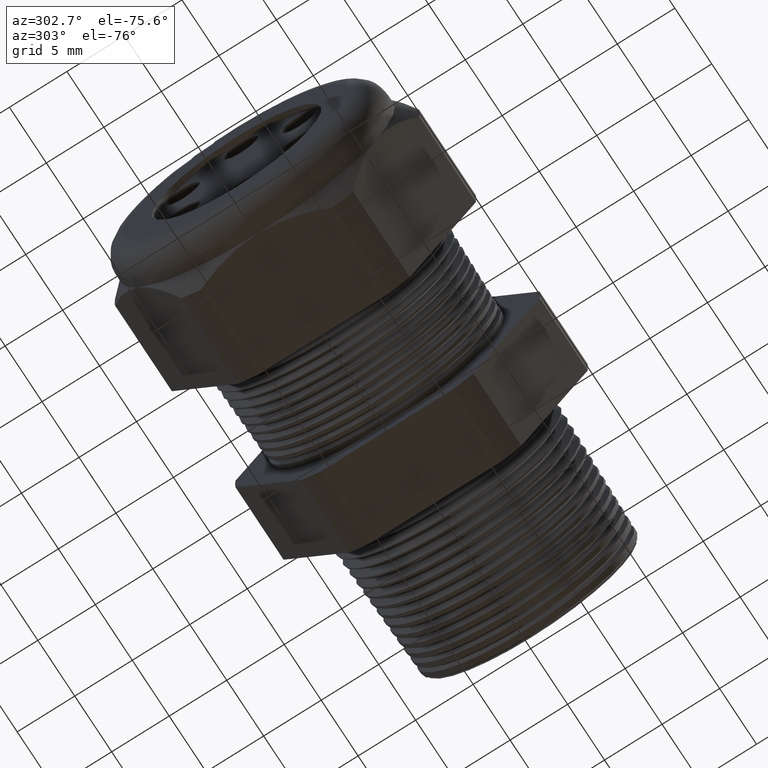
[diagram: clean part render]
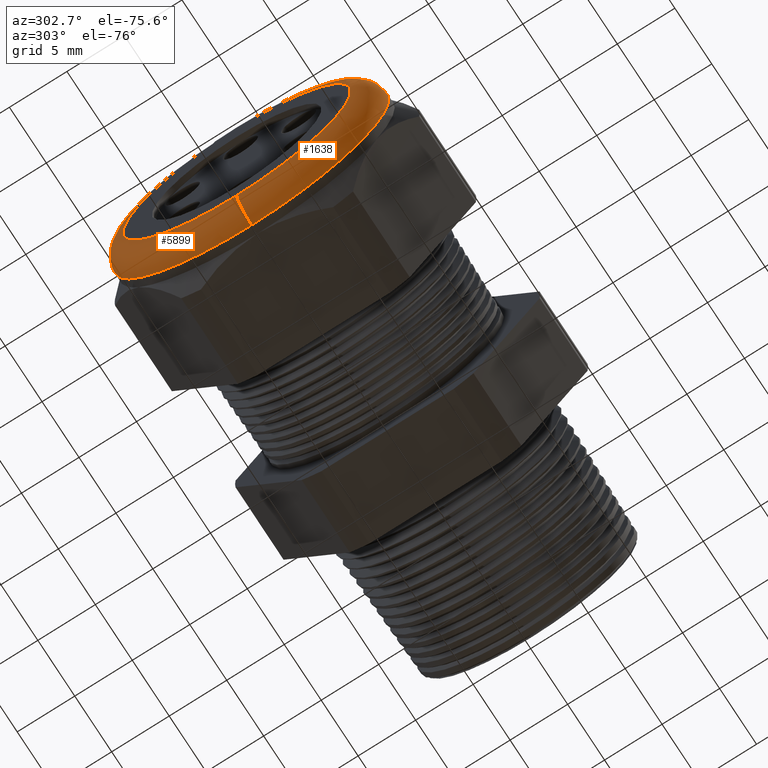
[diagram: same view with one multi-face feature highlighted, each face labeled with its STEP entity id]
A machine part, auxiliary view. The highlighted faces form ONE feature: a constant-radius fillet chain: 2 tangent blend faces with common blend radius 2.032 mm. The faces share edges in the B-rep.
Their STEP definitions:
[1] entity #1638 (Torus):
#9 = VERTEX_POINT ( 'NONE', #2493 ) ;
#31 = EDGE_CURVE ( 'NONE', #5893, #9, #2518, .T. ) ;
#35 = VERTEX_POINT ( 'NONE', #2564 ) ;
#37 = EDGE_CURVE ( 'NONE', #5889, #35, #2562, .T. ) ;
#791 = CARTESIAN_POINT ( 'NONE',  ( -1.290000000000000500, 0.0000000000000000000, -0.4699999999999999200 ) ) ;
#799 = CARTESIAN_POINT ( 'NONE',  ( -1.290000000000000500, 5.755839955992558400E-017, 0.4699999999999999200 ) ) ;
#1466 = EDGE_CURVE ( 'NONE', #5889, #5893, #4195, .T. ) ;
#1485 = EDGE_CURVE ( 'NONE', #9, #35, #4286, .T. ) ;
#1619 = ORIENTED_EDGE ( 'NONE', *, *, #37, .T. ) ;
#1620 = ORIENTED_EDGE ( 'NONE', *, *, #1485, .F. ) ;
#1638 = ADVANCED_FACE ( 'NONE', ( #4458 ), #4457, .T. ) ;
#1639 = EDGE_LOOP ( 'NONE', ( #1640, #1641, #1619, #1620 ) ) ;
#1640 = ORIENTED_EDGE ( 'NONE', *, *, #31, .F. ) ;
#1641 = ORIENTED_EDGE ( 'NONE', *, *, #1466, .F. ) ;
#2493 = CARTESIAN_POINT ( 'NONE',  ( -1.370000000000000300, 5.265981236333617600E-017, -0.3899999999999999600 ) ) ;
#2514 = DIRECTION ( 'NONE',  ( 0.0000000000000000000, -1.224646799147353900E-016, 1.000000000000000000 ) ) ;
#2515 = DIRECTION ( 'NONE',  ( 0.0000000000000000000, 1.000000000000000000, 1.224646799147353200E-016 ) ) ;
#2516 = CARTESIAN_POINT ( 'NONE',  ( -1.290000000000000500, 4.776122516674676800E-017, -0.3899999999999999600 ) ) ;
#2517 = AXIS2_PLACEMENT_3D ( 'NONE', #2516, #2515, #2514 ) ;
#2518 = CIRCLE ( 'NONE', #2517, 0.07999999999999996000 ) ;
#2558 = DIRECTION ( 'NONE',  ( 0.0000000000000000000, 0.0000000000000000000, -1.000000000000000000 ) ) ;
#2559 = DIRECTION ( 'NONE',  ( 0.0000000000000000000, -1.000000000000000000, 0.0000000000000000000 ) ) ;
#2560 = CARTESIAN_POINT ( 'NONE',  ( -1.290000000000000500, 0.0000000000000000000, 0.3899999999999999600 ) ) ;
#2561 = AXIS2_PLACEMENT_3D ( 'NONE', #2560, #2559, #2558 ) ;
#2562 = CIRCLE ( 'NONE', #2561, 0.07999999999999996000 ) ;
#2564 = CARTESIAN_POINT ( 'NONE',  ( -1.370000000000000300, 0.0000000000000000000, 0.3899999999999999600 ) ) ;
#4191 = DIRECTION ( 'NONE',  ( 0.0000000000000000000, 0.0000000000000000000, 1.000000000000000000 ) ) ;
#4192 = DIRECTION ( 'NONE',  ( 1.000000000000000000, 0.0000000000000000000, 0.0000000000000000000 ) ) ;
#4193 = CARTESIAN_POINT ( 'NONE',  ( -1.290000000000000500, 0.0000000000000000000, 0.0000000000000000000 ) ) ;
#4194 = AXIS2_PLACEMENT_3D ( 'NONE', #4193, #4192, #4191 ) ;
#4195 = CIRCLE ( 'NONE', #4194, 0.4699999999999999200 ) ;
#4225 = CARTESIAN_POINT ( 'NONE',  ( -1.370000000000000300, 0.0000000000000000000, 0.0000000000000000000 ) ) ;
#4283 = DIRECTION ( 'NONE',  ( 0.0000000000000000000, 0.0000000000000000000, 1.000000000000000000 ) ) ;
#4284 = DIRECTION ( 'NONE',  ( -1.000000000000000000, 0.0000000000000000000, 0.0000000000000000000 ) ) ;
#4285 = AXIS2_PLACEMENT_3D ( 'NONE', #4225, #4284, #4283 ) ;
#4286 = CIRCLE ( 'NONE', #4285, 0.3899999999999999600 ) ;
#4454 = DIRECTION ( 'NONE',  ( 0.0000000000000000000, 0.0000000000000000000, 1.000000000000000000 ) ) ;
#4455 = DIRECTION ( 'NONE',  ( -1.000000000000000000, 0.0000000000000000000, 0.0000000000000000000 ) ) ;
#4456 = AXIS2_PLACEMENT_3D ( 'NONE', #4462, #4455, #4454 ) ;
#4457 = TOROIDAL_SURFACE ( 'NONE', #4456, 0.3899999999999999600, 0.08000000000000000200 ) ;
#4458 = FACE_OUTER_BOUND ( 'NONE', #1639, .T. ) ;
#4462 = CARTESIAN_POINT ( 'NONE',  ( -1.290000000000000500, 0.0000000000000000000, 0.0000000000000000000 ) ) ;
#5889 = VERTEX_POINT ( 'NONE', #799 ) ;
#5893 = VERTEX_POINT ( 'NONE', #791 ) ;
[2] entity #5899 (Torus):
#9 = VERTEX_POINT ( 'NONE', #2493 ) ;
#11 = ORIENTED_EDGE ( 'NONE', *, *, #31, .T. ) ;
#15 = ORIENTED_EDGE ( 'NONE', *, *, #17, .F. ) ;
#17 = EDGE_CURVE ( 'NONE', #35, #9, #2477, .T. ) ;
#31 = EDGE_CURVE ( 'NONE', #5893, #9, #2518, .T. ) ;
#35 = VERTEX_POINT ( 'NONE', #2564 ) ;
#36 = ORIENTED_EDGE ( 'NONE', *, *, #37, .F. ) ;
#37 = EDGE_CURVE ( 'NONE', #5889, #35, #2562, .T. ) ;
#786 = DIRECTION ( 'NONE',  ( 1.000000000000000000, 0.0000000000000000000, 0.0000000000000000000 ) ) ;
#787 = CARTESIAN_POINT ( 'NONE',  ( -1.290000000000000500, 0.0000000000000000000, 0.0000000000000000000 ) ) ;
#788 = AXIS2_PLACEMENT_3D ( 'NONE', #787, #786, #834 ) ;
#789 = CIRCLE ( 'NONE', #788, 0.4699999999999999200 ) ;
#790 = FACE_OUTER_BOUND ( 'NONE', #5900, .T. ) ;
#791 = CARTESIAN_POINT ( 'NONE',  ( -1.290000000000000500, 0.0000000000000000000, -0.4699999999999999200 ) ) ;
#799 = CARTESIAN_POINT ( 'NONE',  ( -1.290000000000000500, 5.755839955992558400E-017, 0.4699999999999999200 ) ) ;
#829 = DIRECTION ( 'NONE',  ( 0.0000000000000000000, 0.0000000000000000000, 1.000000000000000000 ) ) ;
#830 = DIRECTION ( 'NONE',  ( -1.000000000000000000, 0.0000000000000000000, 0.0000000000000000000 ) ) ;
#831 = AXIS2_PLACEMENT_3D ( 'NONE', #833, #830, #829 ) ;
#832 = TOROIDAL_SURFACE ( 'NONE', #831, 0.3899999999999999600, 0.08000000000000000200 ) ;
#833 = CARTESIAN_POINT ( 'NONE',  ( -1.290000000000000500, 0.0000000000000000000, 0.0000000000000000000 ) ) ;
#834 = DIRECTION ( 'NONE',  ( 0.0000000000000000000, 0.0000000000000000000, 1.000000000000000000 ) ) ;
#2474 = DIRECTION ( 'NONE',  ( -1.000000000000000000, 0.0000000000000000000, 0.0000000000000000000 ) ) ;
#2475 = CARTESIAN_POINT ( 'NONE',  ( -1.370000000000000300, 0.0000000000000000000, 0.0000000000000000000 ) ) ;
#2476 = AXIS2_PLACEMENT_3D ( 'NONE', #2475, #2474, #2539 ) ;
#2477 = CIRCLE ( 'NONE', #2476, 0.3899999999999999600 ) ;
#2493 = CARTESIAN_POINT ( 'NONE',  ( -1.370000000000000300, 5.265981236333617600E-017, -0.3899999999999999600 ) ) ;
#2514 = DIRECTION ( 'NONE',  ( 0.0000000000000000000, -1.224646799147353900E-016, 1.000000000000000000 ) ) ;
#2515 = DIRECTION ( 'NONE',  ( 0.0000000000000000000, 1.000000000000000000, 1.224646799147353200E-016 ) ) ;
#2516 = CARTESIAN_POINT ( 'NONE',  ( -1.290000000000000500, 4.776122516674676800E-017, -0.3899999999999999600 ) ) ;
#2517 = AXIS2_PLACEMENT_3D ( 'NONE', #2516, #2515, #2514 ) ;
#2518 = CIRCLE ( 'NONE', #2517, 0.07999999999999996000 ) ;
#2539 = DIRECTION ( 'NONE',  ( 0.0000000000000000000, 0.0000000000000000000, 1.000000000000000000 ) ) ;
#2558 = DIRECTION ( 'NONE',  ( 0.0000000000000000000, 0.0000000000000000000, -1.000000000000000000 ) ) ;
#2559 = DIRECTION ( 'NONE',  ( 0.0000000000000000000, -1.000000000000000000, 0.0000000000000000000 ) ) ;
#2560 = CARTESIAN_POINT ( 'NONE',  ( -1.290000000000000500, 0.0000000000000000000, 0.3899999999999999600 ) ) ;
#2561 = AXIS2_PLACEMENT_3D ( 'NONE', #2560, #2559, #2558 ) ;
#2562 = CIRCLE ( 'NONE', #2561, 0.07999999999999996000 ) ;
#2564 = CARTESIAN_POINT ( 'NONE',  ( -1.370000000000000300, 0.0000000000000000000, 0.3899999999999999600 ) ) ;
#5889 = VERTEX_POINT ( 'NONE', #799 ) ;
#5893 = VERTEX_POINT ( 'NONE', #791 ) ;
#5896 = ORIENTED_EDGE ( 'NONE', *, *, #5897, .F. ) ;
#5897 = EDGE_CURVE ( 'NONE', #5893, #5889, #789, .T. ) ;
#5899 = ADVANCED_FACE ( 'NONE', ( #790 ), #832, .T. ) ;
#5900 = EDGE_LOOP ( 'NONE', ( #5896, #11, #15, #36 ) ) ;